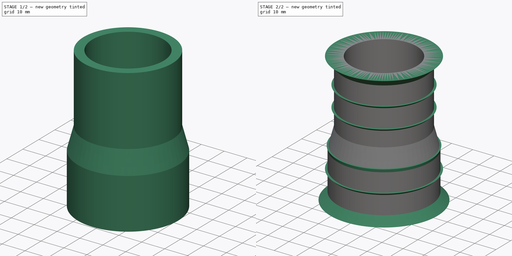
[diagram: build sequence overview — one tinted view per stage of 2, left to right]
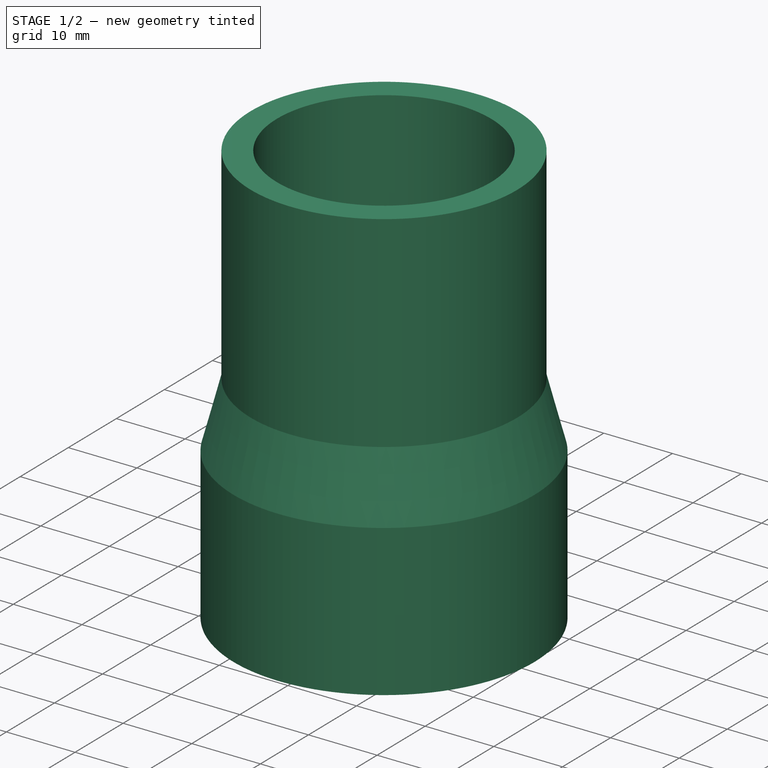
[diagram: stage 1 of 2 — iso view after this stage's code; geometry added in this stage tinted green]
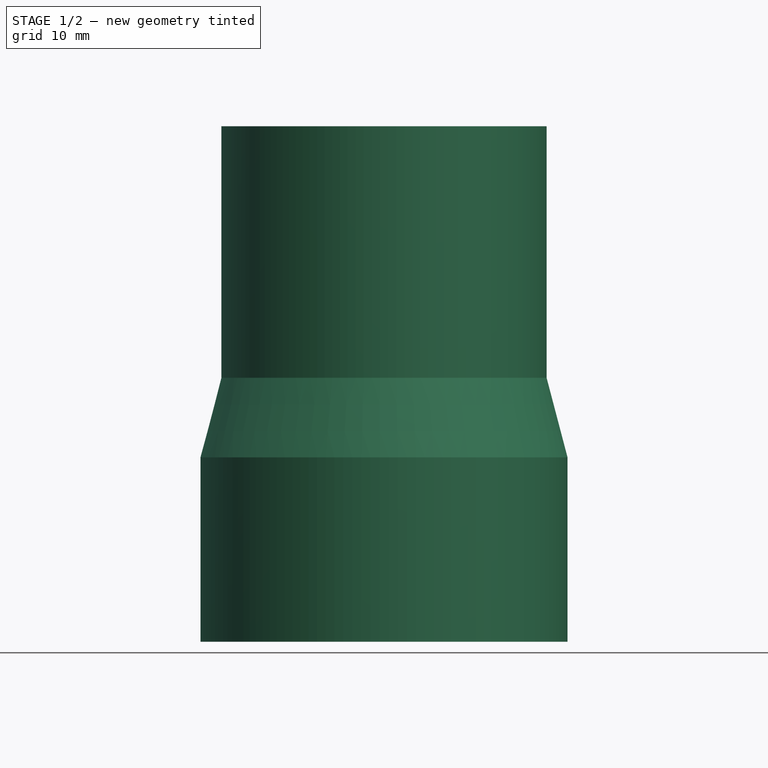
[diagram: stage 1 of 2 — front view after this stage's code; geometry added in this stage tinted green]
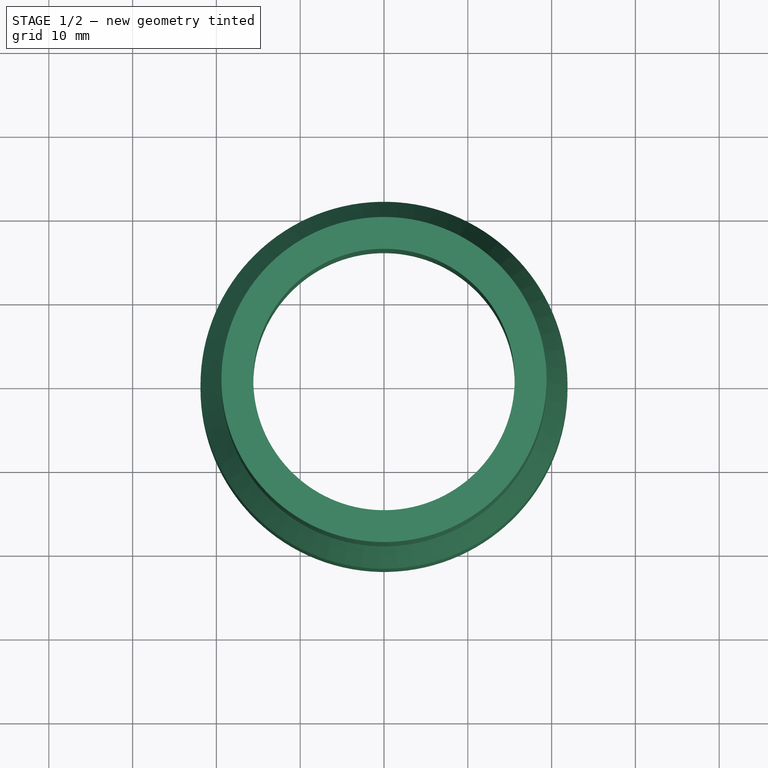
[diagram: stage 1 of 2 — top view after this stage's code; geometry added in this stage tinted green]
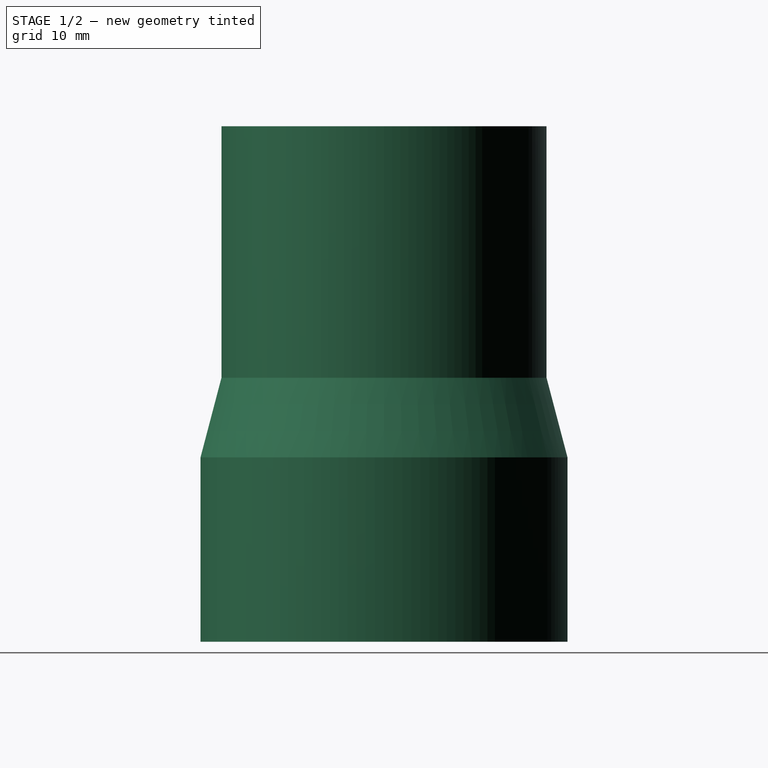
[diagram: stage 1 of 2 — right view after this stage's code; geometry added in this stage tinted green]
FCSTD DOCUMENT  (FreeCAD 1.1R20260414 (Git shallow))
Label: Переходник с 32 на 40
License: All rights reserved
LicenseURL: https://en.wikipedia.org/wiki/All_rights_reserved
objects: Sketcher::SketchObject×2, PartDesign::Revolution×2, App::Point×1, PartDesign::Body×1
note: 11 computed .brp shape members not serialized (recipe doc carries the construction recipe); baked Part::Feature solids carry a one-line shape summary decoded from their .brp

FEATURE [App::Point] Origin001  label="Начало координат"
  Role = Origin
FEATURE [Sketcher::SketchObject] Sketch
  ArcFitTolerance = 1e-06
  AttachmentSupport = -> [Origin]
  ExternalTypes = [0]
  FullyConstrained = true
  MakeInternals = false
  MapMode = 5
  Placement = pos=(0,0,0) rot=(1,0,0;1.5708rad)
  _ExternalGeoVersion = 1
  expr: Constraints[19] = 31.2 / 2
  expr: Constraints[21] = 36.2 / 2
  sketch-geometry (8):
    g0: LineSegment StartX=19.4 StartY=61.5 StartZ=0 EndX=19.4 EndY=31.5 EndZ=0
    g1: LineSegment StartX=19.4 StartY=31.5 StartZ=0 EndX=21.9 EndY=22 EndZ=0
    g2: LineSegment StartX=21.9 StartY=22 StartZ=0 EndX=21.9 EndY=0 EndZ=0
    g3: LineSegment StartX=18.1 StartY=0 StartZ=0 EndX=18.1 EndY=22 EndZ=0
    g4: LineSegment StartX=18.1 StartY=22 StartZ=0 EndX=15.6 EndY=31.5 EndZ=0
    g5: LineSegment StartX=15.6 StartY=31.5 StartZ=0 EndX=15.6 EndY=61.5 EndZ=0
    g6: LineSegment StartX=15.6 StartY=61.5 StartZ=0 EndX=19.4 EndY=61.5 EndZ=0
    g7: LineSegment StartX=21.9 StartY=0 StartZ=0 EndX=18.1 EndY=0 EndZ=0
  constraints (24):
    c: Vertical(g0)
    c: Coincident(g0,g1)
    c: Coincident(g1,g2)
    c: Vertical(g2)
    c: Coincident(g7,g3)
    c: Vertical(g3)
    c: Coincident(g3,g4)
    c: Coincident(g4,g5)
    c: Vertical(g5)
    c: Coincident(g5,g6)
    c: Horizontal(g6)
    c: Horizontal(g7)
    c: Coincident(g2,g7)
    c: Coincident(g6,g0)
    c: PointOnObject(g2,g-1)
    c: DistanceY(g0,g0) = 30
    c: DistanceY(g2,g2) = 22
    c: Distance(g0,g-1) = 61.5
    c: Equal(g7,g6)
    c: Distance(g5,g-2) = 15.6
    c: DistanceX(g6,g6) = 3.8
    c: DistanceX(g-1,g3) = 18.1
    c: Equal(g1,g4)
    c: Horizontal(g4,g0)
FEATURE [PartDesign::Revolution] Revolution
  Angle = 360
  Angle2 = 0
  Axis = (0,2e-16,1)
  Base = (0,0,0)
  FuseOrder = 0
  Profile = -> Sketch
  ReferenceAxis = -> Sketch [V_Axis]
  Refine = true
  Reversed = true
  Suppressed = false
  Type = 0
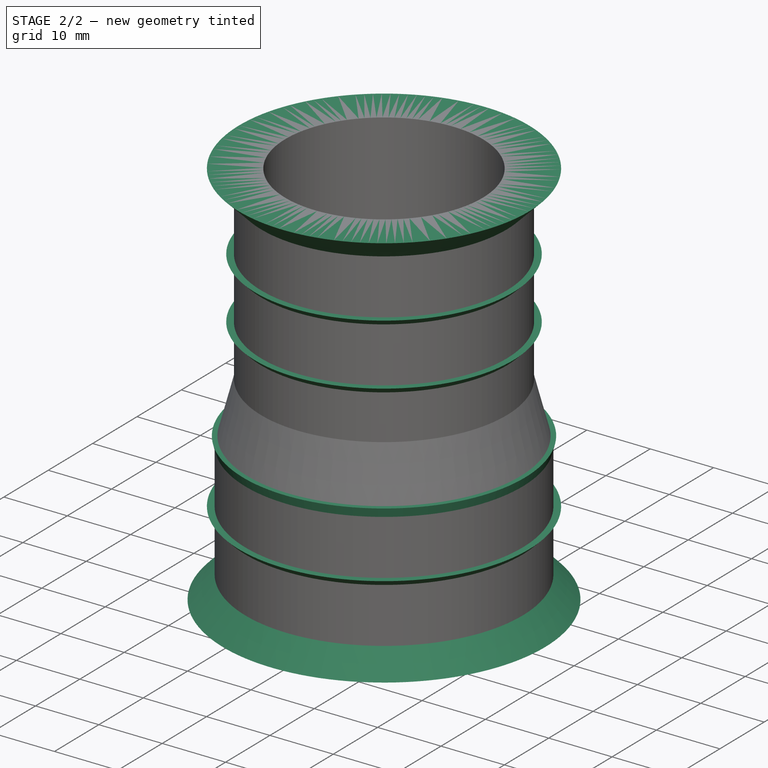
[diagram: stage 2 of 2 — iso view after this stage's code; geometry added in this stage tinted green]
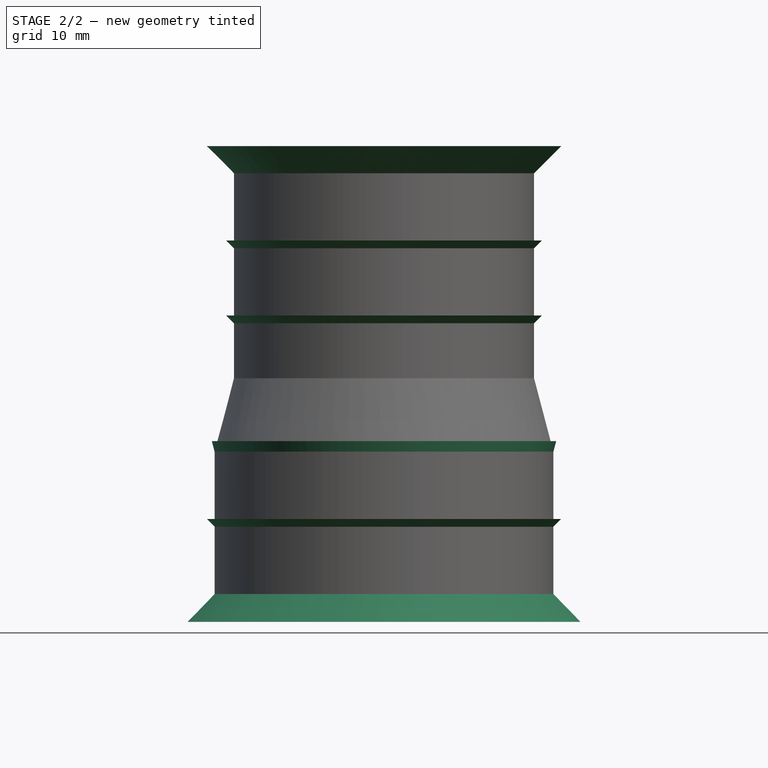
[diagram: stage 2 of 2 — front view after this stage's code; geometry added in this stage tinted green]
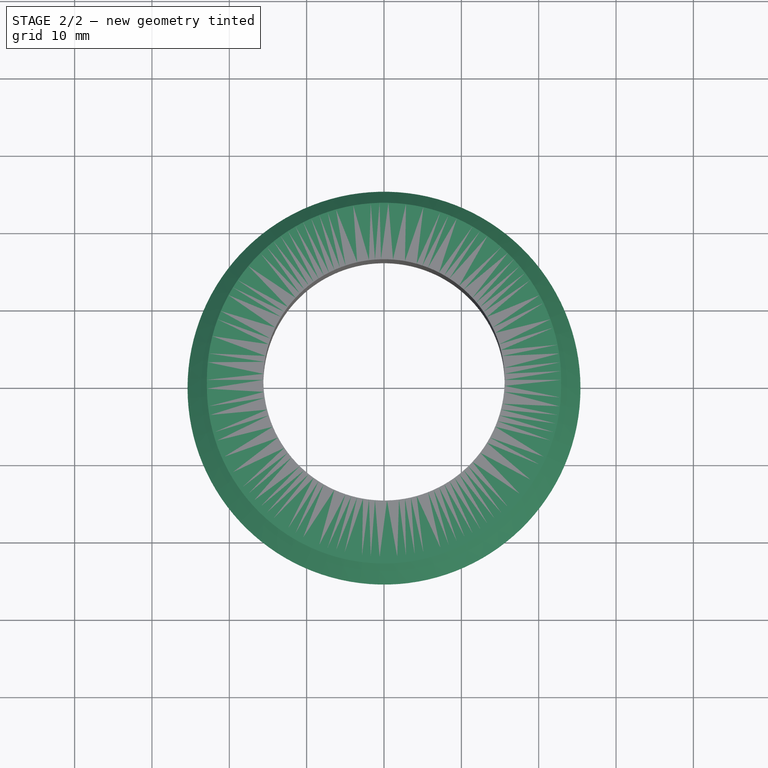
[diagram: stage 2 of 2 — top view after this stage's code; geometry added in this stage tinted green]
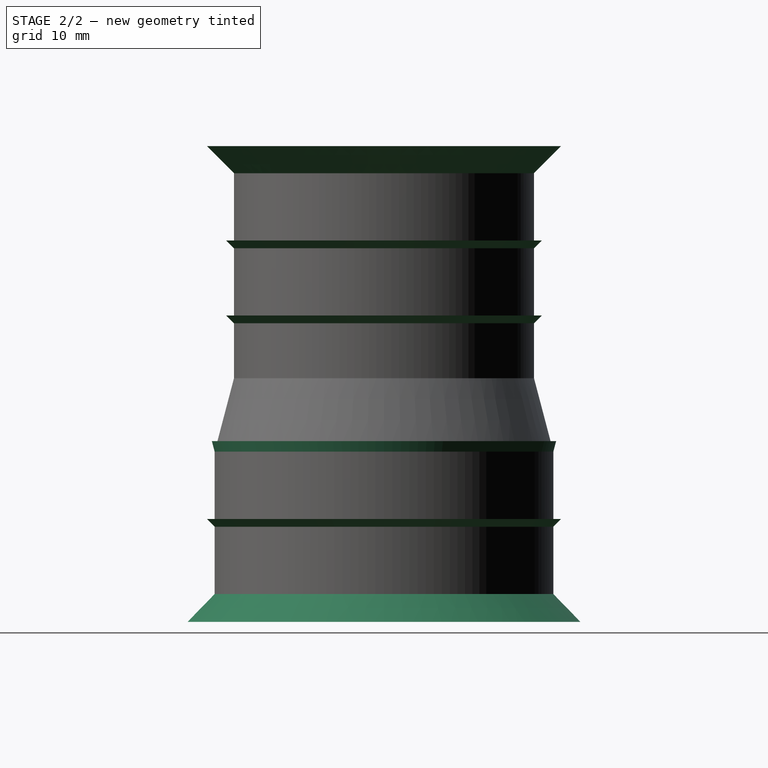
[diagram: stage 2 of 2 — right view after this stage's code; geometry added in this stage tinted green]
FEATURE [Sketcher::SketchObject] Sketch001
  ArcFitTolerance = 1e-06
  AttachmentSupport = -> [Origin]
  ExternalGeometry = -> [Revolution]
  ExternalTypes = [0,0,0]
  FullyConstrained = true
  MakeInternals = false
  MapMode = 5
  Placement = pos=(0,0,0) rot=(1,0,0;1.5708rad)
  _ExternalGeoVersion = 1
  sketch-geometry (22):
    g0: LineSegment StartX=19.4 StartY=61.5 StartZ=0 EndX=22.9 EndY=61.5 EndZ=0
    g1: LineSegment StartX=22.9 StartY=61.5 StartZ=0 EndX=19.4 EndY=58 EndZ=0
    g2: LineSegment StartX=19.4 StartY=58 StartZ=0 EndX=19.4 EndY=61.5 EndZ=0
    g3: LineSegment StartX=21.9 StartY=3.6 StartZ=0 EndX=25.4 EndY=0 EndZ=0
    g4: LineSegment StartX=25.4 StartY=0 StartZ=0 EndX=21.9 EndY=0 EndZ=0
    g5: LineSegment StartX=21.9 StartY=0 StartZ=0 EndX=21.9 EndY=3.6 EndZ=0
    g6: LineSegment StartX=21.9 StartY=13.3 StartZ=0 EndX=22.9 EndY=13.3 EndZ=0
    g7: LineSegment StartX=22.9 StartY=13.3 StartZ=0 EndX=21.9 EndY=12.3 EndZ=0
    g8: LineSegment StartX=21.9 StartY=12.3 StartZ=0 EndX=21.9 EndY=13.3 EndZ=0
    g9: LineSegment StartX=21.5401 StartY=23.3676 StartZ=0 EndX=21.9 EndY=22 EndZ=0
    g10: LineSegment StartX=21.9 StartY=22 StartZ=0 EndX=22.2599 EndY=23.3676 EndZ=0
    g11: LineSegment StartX=22.2599 StartY=23.3676 StartZ=0 EndX=21.5401 EndY=23.3676 EndZ=0
    g12: LineSegment StartX=19.4 StartY=49.3 StartZ=0 EndX=20.4 EndY=49.3 EndZ=0
    g13: LineSegment StartX=20.4 StartY=49.3 StartZ=0 EndX=19.4 EndY=48.3 EndZ=0
    g14: LineSegment StartX=19.4 StartY=48.3 StartZ=0 EndX=19.4 EndY=49.3 EndZ=0
    g15: LineSegment StartX=19.4 StartY=39.6 StartZ=0 EndX=20.4 EndY=39.6 EndZ=0
    g16: LineSegment StartX=20.4 StartY=39.6 StartZ=0 EndX=19.4 EndY=38.6 EndZ=0
    g17: LineSegment StartX=19.4 StartY=38.6 StartZ=0 EndX=19.4 EndY=39.6 EndZ=0
    g18: LineSegment [constr] StartX=21.9 StartY=22 StartZ=0 EndX=21.9 EndY=13.3 EndZ=0
    g19: LineSegment [constr] StartX=21.9 StartY=12.3 StartZ=0 EndX=21.9 EndY=3.6 EndZ=0
    g20: LineSegment [constr] StartX=19.4 StartY=48.3 StartZ=0 EndX=19.4 EndY=39.6 EndZ=0
    g21: LineSegment [constr] StartX=19.4 StartY=58 StartZ=0 EndX=19.4 EndY=49.3 EndZ=0
  constraints (60):
    c: Coincident(g-3,g0)
    c: Coincident(g0,g1)
    c: PointOnObject(g1,g-3)
    c: Coincident(g1,g2)
    c: Coincident(g2,g0)
    c: PointOnObject(g3,g-5)
    c: Coincident(g3,g4)
    c: Coincident(g4,g-5)
    c: Coincident(g4,g5)
    c: Coincident(g5,g3)
    c: PointOnObject(g6,g-5)
    c: Coincident(g6,g7)
    c: Coincident(g9,g10)
    c: Coincident(g10,g11)
    c: Coincident(g11,g9)
    c: PointOnObject(g12,g-3)
    c: Coincident(g12,g13)
    c: PointOnObject(g13,g-3)
    c: Coincident(g13,g14)
    c: Coincident(g14,g12)
    c: Coincident(g15,g16)
    c: PointOnObject(g16,g-3)
    c: Coincident(g16,g17)
    c: Coincident(g17,g15)
    c: PointOnObject(g15,g-3)
    c: Coincident(g7,g8)
    c: Coincident(g8,g6)
    c: Perpendicular(g2,g0)
    c: Perpendicular(g14,g12)
    c: Perpendicular(g17,g15)
    c: Perpendicular(g5,g4)
    c: Equal(g12,g14)
    c: Equal(g15,g17)
    c: Equal(g10,g9)
    c: Equal(g7,g10)
    c: Distance(g4,g4) = 3.5
    c: PointOnObject(g7,g-5)
    c: DistanceY(g19,g19) = 8.7
    c: Coincident(g19,g3)
    c: Coincident(g19,g7)
    c: Coincident(g18,g6)
    c: Coincident(g18,g9)
    c: PointOnObject(g9,g-4)
    c: Coincident(g21,g1)
    c: Coincident(g12,g21)
    c: Coincident(g20,g13)
    c: Coincident(g20,g15)
    c: Horizontal(g11)
    c: DistanceX(g6,g6) = 1
    c: Perpendicular(g6,g8)
    c: Distance(g12,g12) = 1
    c: Equal(g20,g21)
    c: Equal(g20,g18)
    c: Equal(g18,g19)
    c: Equal(g8,g6)
    c: Coincident(g9,g-5)
    c: Equal(g15,g6)
    c: Equal(g15,g12)
    c: Equal(g0,g2)
    c: Equal(g0,g4)
FEATURE [PartDesign::Revolution] Revolution001
  Angle = 360
  Angle2 = 0
  Axis = (0,2e-16,1)
  Base = (0,0,0)
  BaseFeature = -> Revolution
  FuseOrder = 0
  Profile = -> Sketch001
  ReferenceAxis = -> Sketch001 [V_Axis]
  Refine = true
  Reversed = true
  Suppressed = false
  Type = 0
FEATURE [PartDesign::Body] Body  label="Тело"
  AllowCompound = true
  Group = -> [Sketch,Revolution,Sketch001,Revolution001]
  Origin = -> Origin
  Tip = -> Revolution001
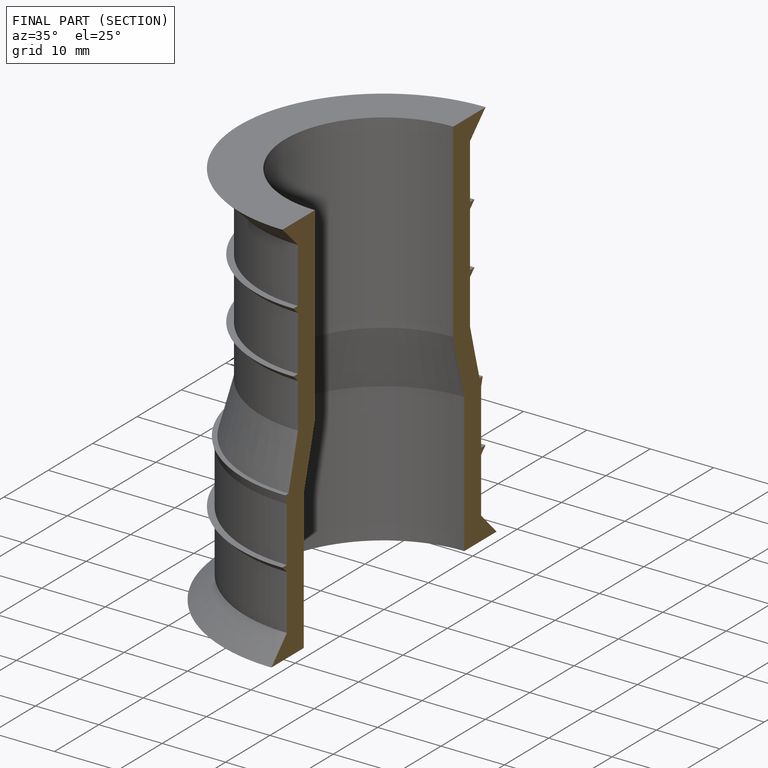
[diagram: finished part — half-section view (interior)]
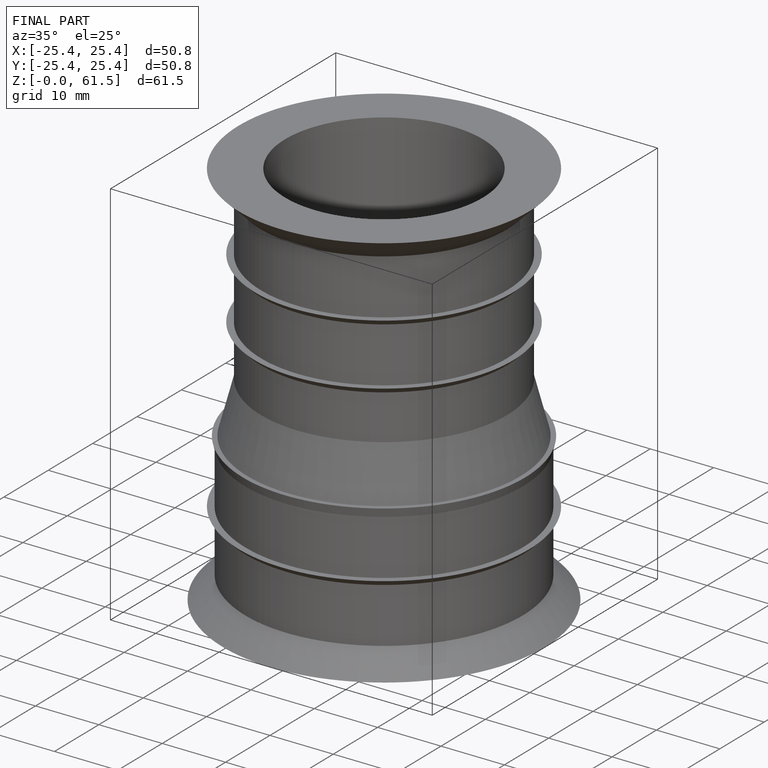
[diagram: finished part — iso view with bounding-box wireframe]
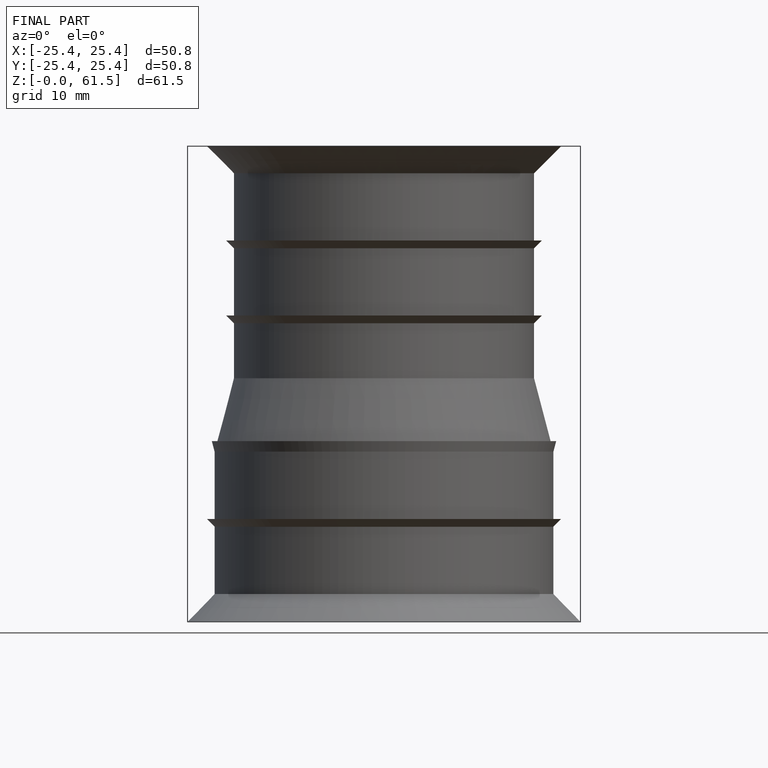
[diagram: finished part — front view with bounding-box wireframe]
